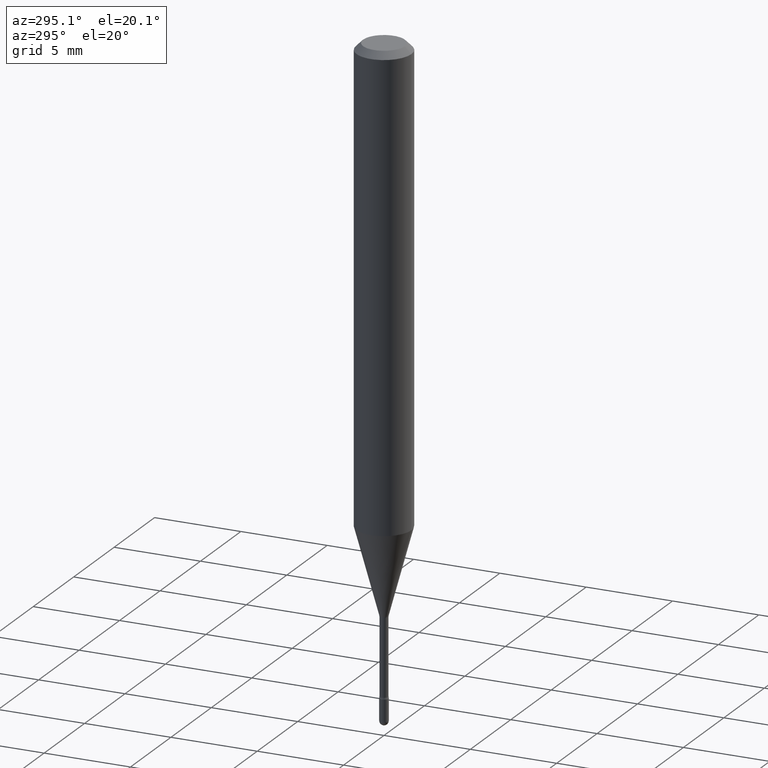
[diagram: clean part render]
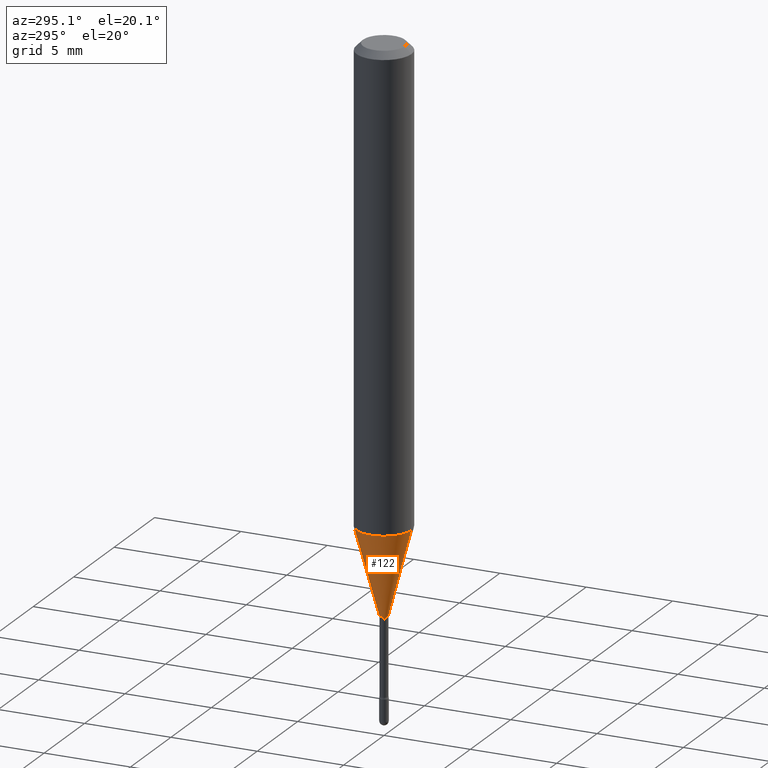
[diagram: same view with one face highlighted and labeled with its STEP entity id]
A machine part, auxiliary view. The second image highlights one B-rep face of the part: STEP entity #122.
In plain terms, the highlighted conical surface has half-angle 15 deg.
Its self-contained STEP definition (entity closure, byte-faithful):
#21 = EDGE_CURVE ( 'NONE', #548, #84, #392, .T. ) ;
#24 = AXIS2_PLACEMENT_3D ( 'NONE', #76, #189, #416 ) ;
#28 = DIRECTION ( 'NONE',  ( -2.445584668416512625E-29, 3.491315417533346075E-15, 1.000000000000000000 ) ) ;
#29 = CARTESIAN_POINT ( 'NONE',  ( 4.440892098500884514E-16, 0.06249999999999629463, -1.061828102118093309 ) ) ;
#49 = CARTESIAN_POINT ( 'NONE',  ( -6.920892941966669973E-17, -0.009911112605668376263, -1.258092501787273276 ) ) ;
#76 = CARTESIAN_POINT ( 'NONE',  ( 3.076771733820729551E-29, -4.392397748173006577E-15, -1.258092501787273276 ) ) ;
#84 = VERTEX_POINT ( 'NONE', #202 ) ;
#98 = EDGE_CURVE ( 'NONE', #139, #548, #544, .T. ) ;
#104 = FACE_OUTER_BOUND ( 'NONE', #174, .T. ) ;
#120 = CARTESIAN_POINT ( 'NONE',  ( -6.920892941966669973E-17, -0.009911112605668376263, -1.258092501787273276 ) ) ;
#122 = ADVANCED_FACE ( 'NONE', ( #104 ), #134, .T. ) ;
#124 = ORIENTED_EDGE ( 'NONE', *, *, #552, .F. ) ;
#127 = VECTOR ( 'NONE', #273, 39.37007874015748143 ) ;
#134 = CONICAL_SURFACE ( 'NONE', #381, 0.009911112605663983943, 0.2617993877991496854 ) ;
#135 = AXIS2_PLACEMENT_3D ( 'NONE', #295, #196, #334 ) ;
#139 = VERTEX_POINT ( 'NONE', #333 ) ;
#146 = VERTEX_POINT ( 'NONE', #29 ) ;
#147 = VECTOR ( 'NONE', #315, 39.37007874015748854 ) ;
#174 = EDGE_LOOP ( 'NONE', ( #443, #517, #521, #124 ) ) ;
#187 = LINE ( 'NONE', #237, #127 ) ;
#189 = DIRECTION ( 'NONE',  ( -2.445584668416512625E-29, 3.491315417533346075E-15, 1.000000000000000000 ) ) ;
#196 = DIRECTION ( 'NONE',  ( -2.445584668416512625E-29, 3.491315417533346075E-15, 1.000000000000000000 ) ) ;
#202 = CARTESIAN_POINT ( 'NONE',  ( -4.364351673553657356E-16, -0.06250000000000371925, -1.061828102118092865 ) ) ;
#237 = CARTESIAN_POINT ( 'NONE',  ( 7.042269065257977501E-17, 0.009911112605659591623, -1.258092501787273276 ) ) ;
#273 = DIRECTION ( 'NONE',  ( 1.839019923739596371E-15, 0.2588190451025244032, 0.9659258262890673130 ) ) ;
#280 = CARTESIAN_POINT ( 'NONE',  ( 3.076771733820729551E-29, -4.392397748173006577E-15, -1.258092501787273276 ) ) ;
#285 = DIRECTION ( 'NONE',  ( -6.982962677686264344E-15, -1.000000000000000000, 0.000000000000000000 ) ) ;
#289 = CIRCLE ( 'NONE', #135, 0.06250000000000000000 ) ;
#295 = CARTESIAN_POINT ( 'NONE',  ( 2.596790527033811359E-29, -3.707176823695070434E-15, -1.061828102118093087 ) ) ;
#315 = DIRECTION ( 'NONE',  ( -1.807323732225326195E-15, -0.2588190451025176309, 0.9659258262890690894 ) ) ;
#333 = CARTESIAN_POINT ( 'NONE',  ( 2.572559502513342919E-16, 0.009911112605659591623, -1.258092501787273276 ) ) ;
#334 = DIRECTION ( 'NONE',  ( -6.982962677686265922E-15, -1.000000000000000000, 4.370956789862821150E-15 ) ) ;
#381 = AXIS2_PLACEMENT_3D ( 'NONE', #280, #28, #285 ) ;
#392 = LINE ( 'NONE', #49, #147 ) ;
#396 = EDGE_CURVE ( 'NONE', #139, #146, #187, .T. ) ;
#416 = DIRECTION ( 'NONE',  ( -6.982962677686264344E-15, -1.000000000000000000, 0.000000000000000000 ) ) ;
#443 = ORIENTED_EDGE ( 'NONE', *, *, #396, .F. ) ;
#517 = ORIENTED_EDGE ( 'NONE', *, *, #98, .T. ) ;
#521 = ORIENTED_EDGE ( 'NONE', *, *, #21, .T. ) ;
#544 = CIRCLE ( 'NONE', #24, 0.009911112605663983943 ) ;
#548 = VERTEX_POINT ( 'NONE', #120 ) ;
#552 = EDGE_CURVE ( 'NONE', #146, #84, #289, .T. ) ;